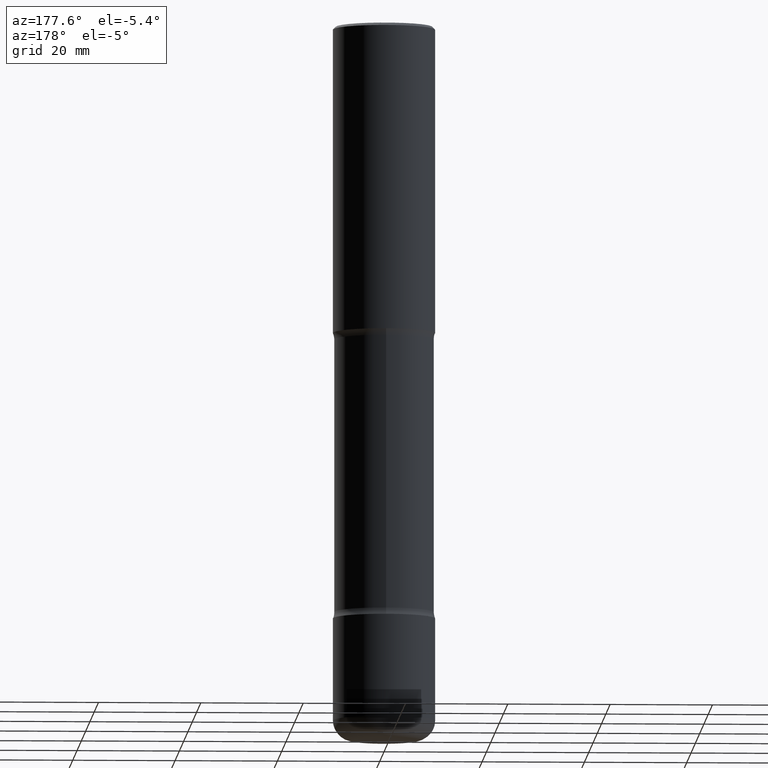
[diagram: clean part render]
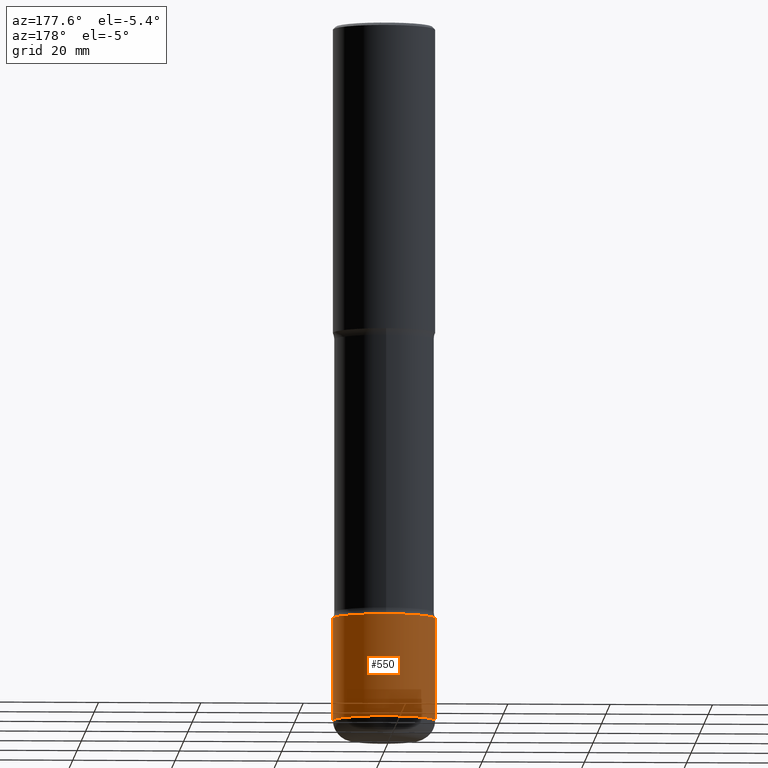
[diagram: same view with one face highlighted and labeled with its STEP entity id]
A machine part, auxiliary view. The second image highlights one B-rep face of the part: STEP entity #550.
In plain terms, the highlighted cylindrical surface (partial cylindrical patch) has radius 10 mm, axis along (-0, 0, 1).
Its self-contained STEP definition (entity closure, byte-faithful):
#3 = ORIENTED_EDGE ( 'NONE', *, *, #149, .T. ) ;
#13 = VECTOR ( 'NONE', #431, 39.37007874015748143 ) ;
#35 = DIRECTION ( 'NONE',  ( -2.445468806185136597E-29, 3.491481338843145583E-15, 1.000000000000000000 ) ) ;
#80 = LINE ( 'NONE', #383, #13 ) ;
#83 = EDGE_CURVE ( 'NONE', #451, #533, #273, .T. ) ;
#87 = CARTESIAN_POINT ( 'NONE',  ( 0.000000000000000000, 0.000000000000000000, 0.000000000000000000 ) ) ;
#94 = CIRCLE ( 'NONE', #281, 0.3937000000000004940 ) ;
#109 = CARTESIAN_POINT ( 'NONE',  ( 1.309377362895707575E-28, -1.869443853256785386E-14, -5.354300000000000281 ) ) ;
#138 = CARTESIAN_POINT ( 'NONE',  ( 0.3937000000000004940, -2.749192406205086766E-15, 1.919750796630862414E-29 ) ) ;
#149 = EDGE_CURVE ( 'NONE', #156, #161, #80, .T. ) ;
#150 = CARTESIAN_POINT ( 'NONE',  ( -0.3937000000000004385, -1.452243557877779036E-14, -4.566900000000000404 ) ) ;
#156 = VERTEX_POINT ( 'NONE', #295 ) ;
#161 = VERTEX_POINT ( 'NONE', #150 ) ;
#163 = CYLINDRICAL_SURFACE ( 'NONE', #194, 0.3937000000000004940 ) ;
#171 = EDGE_CURVE ( 'NONE', #533, #161, #398, .T. ) ;
#181 = DIRECTION ( 'NONE',  ( -2.445468806185136597E-29, 3.491481338843145583E-15, 1.000000000000000000 ) ) ;
#194 = AXIS2_PLACEMENT_3D ( 'NONE', #87, #399, #386 ) ;
#209 = DIRECTION ( 'NONE',  ( 1.000000000000000000, -6.982962677686270655E-15, 0.000000000000000000 ) ) ;
#219 = ORIENTED_EDGE ( 'NONE', *, *, #306, .T. ) ;
#256 = FACE_OUTER_BOUND ( 'NONE', #470, .T. ) ;
#258 = ORIENTED_EDGE ( 'NONE', *, *, #83, .F. ) ;
#273 = LINE ( 'NONE', #138, #430 ) ;
#281 = AXIS2_PLACEMENT_3D ( 'NONE', #109, #181, #453 ) ;
#295 = CARTESIAN_POINT ( 'NONE',  ( -0.3937000000000001609, -1.589703178188033670E-14, -5.354300000000000281 ) ) ;
#306 = EDGE_CURVE ( 'NONE', #451, #156, #94, .T. ) ;
#336 = DIRECTION ( 'NONE',  ( -2.445468806185136877E-29, 3.491481338843145188E-15, 1.000000000000000000 ) ) ;
#354 = AXIS2_PLACEMENT_3D ( 'NONE', #438, #35, #209 ) ;
#383 = CARTESIAN_POINT ( 'NONE',  ( -0.3937000000000004940, 2.797406750687517942E-15, -1.936584745033358697E-29 ) ) ;
#386 = DIRECTION ( 'NONE',  ( 1.000000000000000000, -6.982962677686266711E-15, 4.876176775795935793E-29 ) ) ;
#387 = CARTESIAN_POINT ( 'NONE',  ( 0.3937000000000004385, -1.869443853256785070E-14, -4.566900000000000404 ) ) ;
#397 = ORIENTED_EDGE ( 'NONE', *, *, #171, .F. ) ;
#398 = CIRCLE ( 'NONE', #354, 0.3937000000000004385 ) ;
#399 = DIRECTION ( 'NONE',  ( -2.445468806185136597E-29, 3.491481338843145583E-15, 1.000000000000000000 ) ) ;
#430 = VECTOR ( 'NONE', #336, 39.37007874015748143 ) ;
#431 = DIRECTION ( 'NONE',  ( -2.445468806185136877E-29, 3.491481338843145188E-15, 1.000000000000000000 ) ) ;
#438 = CARTESIAN_POINT ( 'NONE',  ( 1.116821149096690103E-28, -1.594524612636276117E-14, -4.566900000000000404 ) ) ;
#442 = CARTESIAN_POINT ( 'NONE',  ( 0.3937000000000001609, -2.144363093877294338E-14, -5.354300000000000281 ) ) ;
#451 = VERTEX_POINT ( 'NONE', #442 ) ;
#453 = DIRECTION ( 'NONE',  ( 1.000000000000000000, -6.982962677686269866E-15, 0.000000000000000000 ) ) ;
#470 = EDGE_LOOP ( 'NONE', ( #219, #3, #397, #258 ) ) ;
#533 = VERTEX_POINT ( 'NONE', #387 ) ;
#550 = ADVANCED_FACE ( 'NONE', ( #256 ), #163, .T. ) ;